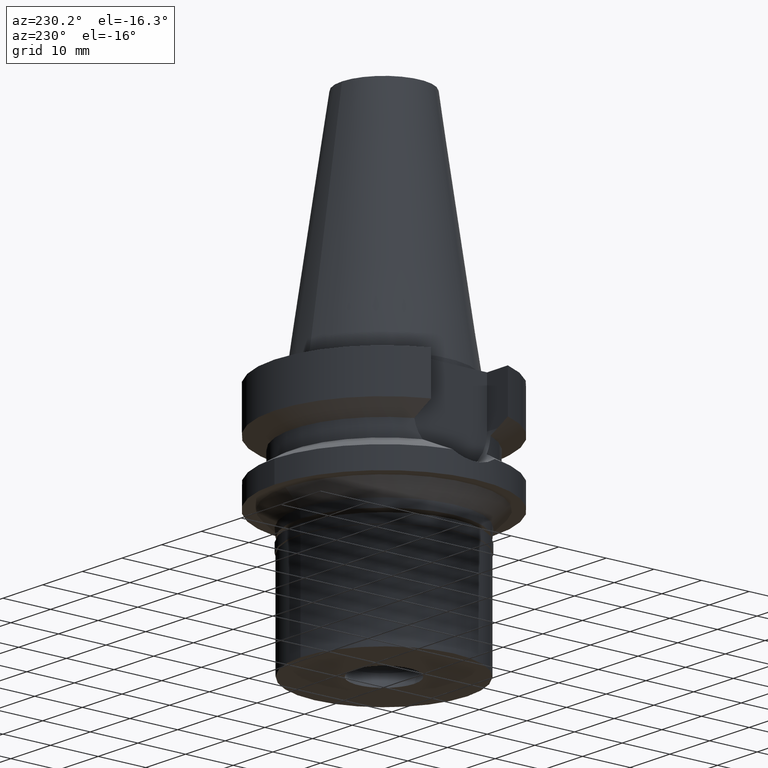
[diagram: clean part render]
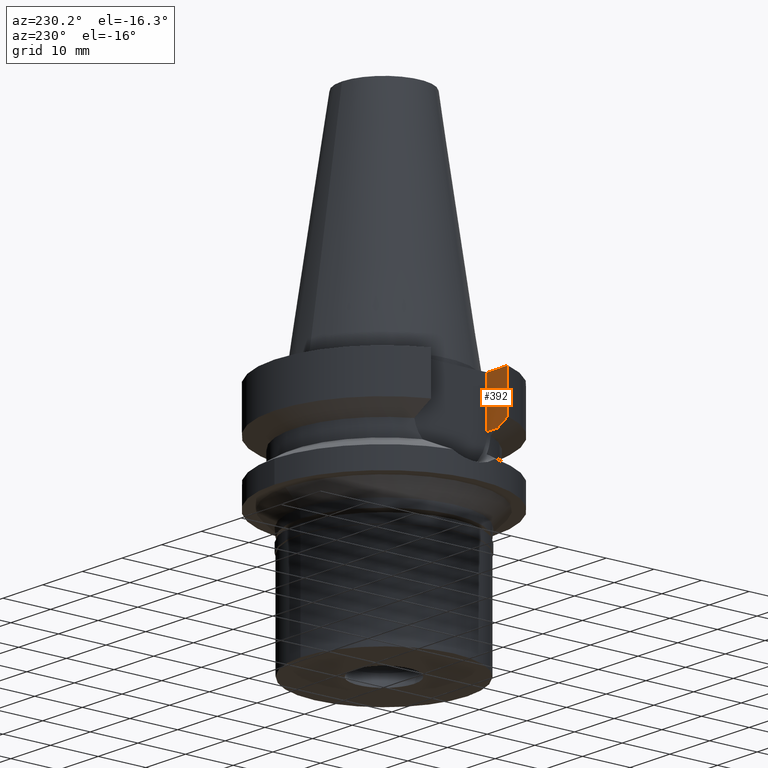
[diagram: same view with one face highlighted and labeled with its STEP entity id]
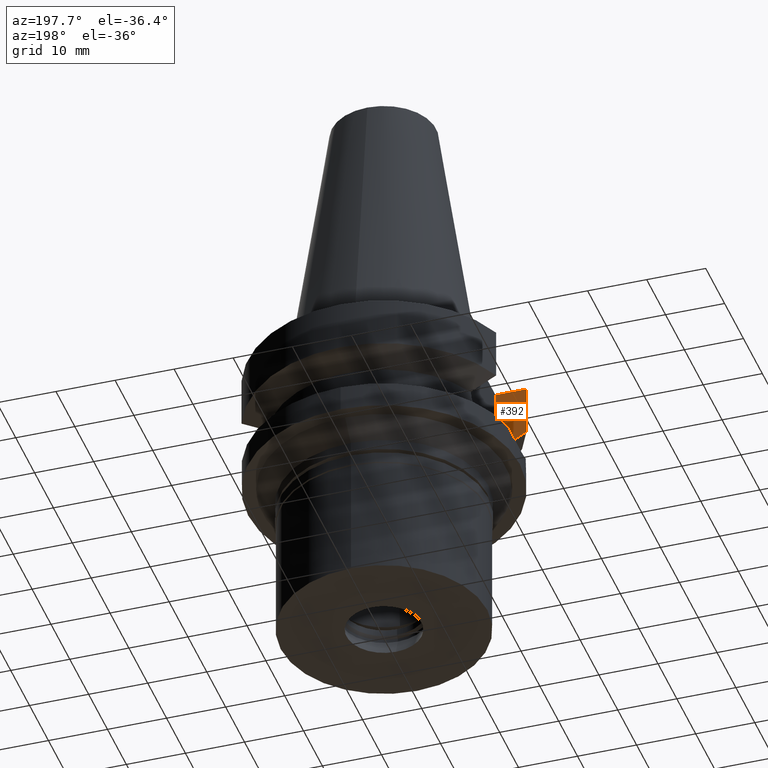
[diagram: same view with one face highlighted and labeled with its STEP entity id]
A machine part, auxiliary view. The second image highlights one B-rep face of the part: STEP entity #392.
A second angle (auxiliary view) of the same face is appended — the face is thin or edge-on in the first view.
In plain terms, the highlighted planar face has unit normal (0, -1, 0).
Its self-contained STEP definition (entity closure, byte-faithful):
#48 = AXIS2_PLACEMENT_3D ( 'NONE', #1367, #604, #1536 ) ;
#49 = VECTOR ( 'NONE', #76, 1000.000000000000000 ) ;
#76 = DIRECTION ( 'NONE',  ( 1.000000000000000000, 9.313164748262000573E-14, 0.0000000000000000000 ) ) ;
#85 = VECTOR ( 'NONE', #743, 1000.000000000000114 ) ;
#169 = CARTESIAN_POINT ( 'NONE',  ( -21.54524325238000060, -8.049999577366000025, -9.567211146628999074 ) ) ;
#392 = ADVANCED_FACE ( 'NONE', ( #1519 ), #2242, .F. ) ;
#472 = DIRECTION ( 'NONE',  ( 0.0000000000000000000, 0.0000000000000000000, -1.000000000000000000 ) ) ;
#537 = VERTEX_POINT ( 'NONE', #1762 ) ;
#604 = DIRECTION ( 'NONE',  ( 0.0000000000000000000, -1.000000000000000000, 0.0000000000000000000 ) ) ;
#646 = CARTESIAN_POINT ( 'NONE',  ( -21.54524325238000060, -8.049999577366000025, -9.567211146628999074 ) ) ;
#720 = CARTESIAN_POINT ( 'NONE',  ( -21.54524325238000060, -8.049999577366000025, -9.567211146628999074 ) ) ;
#743 = DIRECTION ( 'NONE',  ( -0.9999999999976610932, 2.130145243754915204E-06, -3.746156304800855479E-07 ) ) ;
#940 = EDGE_CURVE ( 'NONE', #2472, #537, #2814, .T. ) ;
#979 = ORIENTED_EDGE ( 'NONE', *, *, #2851, .T. ) ;
#1062 = LINE ( 'NONE', #2665, #49 ) ;
#1111 = VECTOR ( 'NONE', #1571, 1000.000000000000114 ) ;
#1188 = CARTESIAN_POINT ( 'NONE',  ( -16.29999999999999716, -8.050000000000000711, -10.94999999999999929 ) ) ;
#1263 = EDGE_CURVE ( 'NONE', #2869, #2403, #1271, .T. ) ;
#1271 = B_SPLINE_CURVE_WITH_KNOTS ( 'NONE', 3,
 ( #169, #2753, #2328, #3042 ),
 .UNSPECIFIED., .F., .F.,
 ( 4, 4 ),
 ( 0.0000000000000000000, 1.000000000000000000 ),
 .UNSPECIFIED. ) ;
#1367 = CARTESIAN_POINT ( 'NONE',  ( -23.00000000000000000, -8.050000000000000711, -10.94999999999999929 ) ) ;
#1370 = LINE ( 'NONE', #720, #1111 ) ;
#1380 = ORIENTED_EDGE ( 'NONE', *, *, #1437, .T. ) ;
#1437 = EDGE_CURVE ( 'NONE', #537, #2403, #2852, .T. ) ;
#1519 = FACE_OUTER_BOUND ( 'NONE', #2295, .T. ) ;
#1536 = DIRECTION ( 'NONE',  ( 0.0000000000000000000, 0.0000000000000000000, -1.000000000000000000 ) ) ;
#1571 = DIRECTION ( 'NONE',  ( 1.843191754168992707E-08, -4.933165888406983159E-08, 0.9999999999999985567 ) ) ;
#1576 = ORIENTED_EDGE ( 'NONE', *, *, #940, .T. ) ;
#1629 = EDGE_CURVE ( 'NONE', #2089, #2472, #1062, .T. ) ;
#1762 = CARTESIAN_POINT ( 'NONE',  ( -16.29999999999999716, -8.050000000000000711, -10.94999999999999929 ) ) ;
#1902 = CARTESIAN_POINT ( 'NONE',  ( -16.29999999999999716, -8.050000000000000711, -1.000000000000000000 ) ) ;
#2089 = VERTEX_POINT ( 'NONE', #2439 ) ;
#2175 = ORIENTED_EDGE ( 'NONE', *, *, #1629, .T. ) ;
#2242 = PLANE ( 'NONE',  #48 ) ;
#2295 = EDGE_LOOP ( 'NONE', ( #979, #2175, #1576, #1380, #2690 ) ) ;
#2328 = CARTESIAN_POINT ( 'NONE',  ( -19.78174442233869001, -8.049991903459030596, -10.51718567402809157 ) ) ;
#2367 = CARTESIAN_POINT ( 'NONE',  ( -16.29999999999999716, -8.050000000000000711, -1.000000000000000000 ) ) ;
#2403 = VERTEX_POINT ( 'NONE', #2812 ) ;
#2439 = CARTESIAN_POINT ( 'NONE',  ( -21.54524309446999908, -8.050000000000000711, -1.000000000000000000 ) ) ;
#2472 = VERTEX_POINT ( 'NONE', #1902 ) ;
#2586 = VECTOR ( 'NONE', #472, 1000.000000000000000 ) ;
#2665 = CARTESIAN_POINT ( 'NONE',  ( -21.54524309446999908, -8.050000000000000711, -1.000000000000000000 ) ) ;
#2690 = ORIENTED_EDGE ( 'NONE', *, *, #1263, .F. ) ;
#2753 = CARTESIAN_POINT ( 'NONE',  ( -20.64098922449850093, -8.049999155425611619, -10.05625859809538447 ) ) ;
#2812 = CARTESIAN_POINT ( 'NONE',  ( -18.96738966519999892, -8.049994318072998922, -10.95000099924999937 ) ) ;
#2814 = LINE ( 'NONE', #2367, #2586 ) ;
#2851 = EDGE_CURVE ( 'NONE', #2869, #2089, #1370, .T. ) ;
#2852 = LINE ( 'NONE', #1188, #85 ) ;
#2869 = VERTEX_POINT ( 'NONE', #646 ) ;
#3042 = CARTESIAN_POINT ( 'NONE',  ( -18.96738966519999892, -8.049994318072998922, -10.95000099924999937 ) ) ;